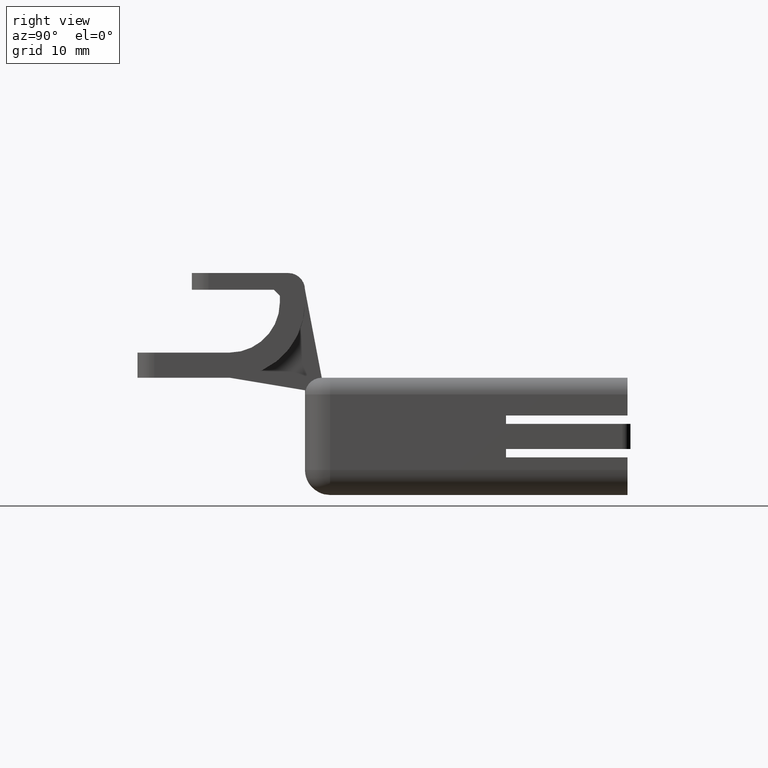
[diagram: clean part render]
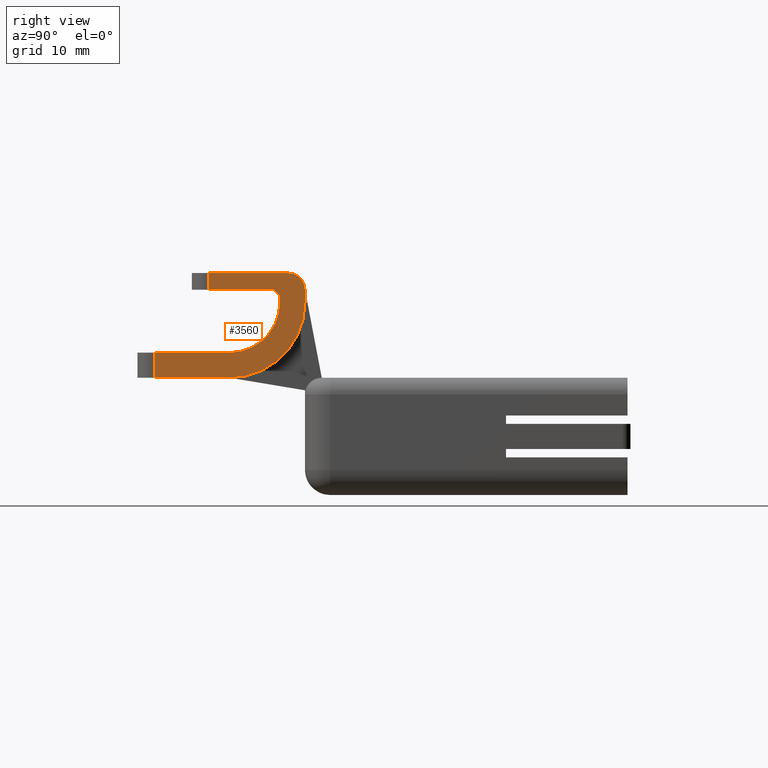
[diagram: same view with one face highlighted and labeled with its STEP entity id]
A machine part, right view. The second image highlights one B-rep face of the part: STEP entity #3560.
In plain terms, the highlighted planar face has unit normal (-1, -0, 0).
Its self-contained STEP definition (entity closure, byte-faithful):
#653=CIRCLE('',#3765,0.9);
#678=CIRCLE('',#3828,0.2);
#679=CIRCLE('',#3834,0.6);
#890=VERTEX_POINT('',#5427);
#891=VERTEX_POINT('',#5429);
#913=VERTEX_POINT('',#5483);
#914=VERTEX_POINT('',#5485);
#919=VERTEX_POINT('',#5512);
#922=VERTEX_POINT('',#5517);
#925=VERTEX_POINT('',#5527);
#948=VERTEX_POINT('',#5568);
#959=VERTEX_POINT('',#5605);
#960=VERTEX_POINT('',#5607);
#1023=VERTEX_POINT('',#5869);
#1026=VERTEX_POINT('',#5951);
#1191=VECTOR('',#4252,1.);
#1206=VECTOR('',#4300,1.);
#1220=VECTOR('',#4334,1.);
#1224=VECTOR('',#4340,1.);
#1234=VECTOR('',#4366,1.);
#1235=VECTOR('',#4369,1.);
#1248=VECTOR('',#4398,1.);
#1316=VECTOR('',#4561,1.);
#1319=VECTOR('',#4579,1.);
#1484=LINE('',#5428,#1191);
#1499=LINE('',#5484,#1206);
#1513=LINE('',#5518,#1220);
#1517=LINE('',#5526,#1224);
#1527=LINE('',#5569,#1234);
#1528=LINE('',#5571,#1235);
#1541=LINE('',#5606,#1248);
#1609=LINE('',#5868,#1316);
#1612=LINE('',#5954,#1319);
#1856=EDGE_CURVE('',#890,#891,#1484,.T.);
#1885=EDGE_CURVE('',#913,#914,#1499,.T.);
#1904=EDGE_CURVE('',#922,#919,#1513,.T.);
#1908=EDGE_CURVE('',#919,#925,#1517,.T.);
#1937=EDGE_CURVE('',#948,#922,#1527,.T.);
#1938=EDGE_CURVE('',#891,#913,#1528,.T.);
#1956=EDGE_CURVE('',#959,#960,#1541,.T.);
#1961=EDGE_CURVE('',#960,#948,#653,.T.);
#2071=EDGE_CURVE('',#1023,#890,#1609,.T.);
#2073=EDGE_CURVE('',#914,#959,#678,.T.);
#2076=EDGE_CURVE('',#1026,#925,#679,.T.);
#2078=EDGE_CURVE('',#1026,#1023,#1612,.T.);
#2999=ORIENTED_EDGE('',*,*,#1904,.F.);
#3000=ORIENTED_EDGE('',*,*,#1937,.F.);
#3001=ORIENTED_EDGE('',*,*,#1961,.F.);
#3002=ORIENTED_EDGE('',*,*,#1956,.F.);
#3003=ORIENTED_EDGE('',*,*,#2073,.F.);
#3004=ORIENTED_EDGE('',*,*,#1885,.F.);
#3005=ORIENTED_EDGE('',*,*,#1938,.F.);
#3006=ORIENTED_EDGE('',*,*,#1856,.F.);
#3007=ORIENTED_EDGE('',*,*,#2071,.F.);
#3008=ORIENTED_EDGE('',*,*,#2078,.F.);
#3009=ORIENTED_EDGE('',*,*,#2076,.T.);
#3010=ORIENTED_EDGE('',*,*,#1908,.F.);
#3196=EDGE_LOOP('',(#2999,#3000,#3001,#3002,#3003,#3004,#3005,#3006,#3007,
#3008,#3009,#3010));
#3382=FACE_BOUND('',#3196,.T.);
#3560=ADVANCED_FACE('',(#3382),#6058,.F.);
#3765=AXIS2_PLACEMENT_3D('',#5613,#4403,#4404);
#3828=AXIS2_PLACEMENT_3D('',#5872,#4565,#4566);
#3834=AXIS2_PLACEMENT_3D('',#5950,#4575,#4576);
#3836=AXIS2_PLACEMENT_3D('',#5955,#4580,$);
#4252=DIRECTION('',(0.,-1.,0.));
#4300=DIRECTION('',(0.,1.,0.));
#4334=DIRECTION('',(1.,0.,0.));
#4340=DIRECTION('',(0.,1.,0.));
#4366=DIRECTION('',(0.,-1.,0.));
#4369=DIRECTION('',(1.,0.,0.));
#4398=DIRECTION('',(-1.,0.,0.));
#4403=DIRECTION('',(0.,0.,1.));
#4404=DIRECTION('',(0.9,0.,0.));
#4561=DIRECTION('',(0.707106781186548,-0.707106781186548,0.));
#4565=DIRECTION('',(0.,0.,1.));
#4566=DIRECTION('',(0.14142135623731,0.14142135623731,0.));
#4575=DIRECTION('',(0.,0.,1.));
#4576=DIRECTION('',(0.6,0.,0.));
#4579=DIRECTION('',(1.,0.,0.));
#4580=DIRECTION('',(0.,0.,1.));
#5427=CARTESIAN_POINT('',(0.375,0.305,0.));
#5428=CARTESIAN_POINT('',(0.375,0.375,0.));
#5429=CARTESIAN_POINT('',(0.375,-0.475,0.));
#5483=CARTESIAN_POINT('',(0.575,-0.475,0.));
#5484=CARTESIAN_POINT('',(0.575,-0.675,0.));
#5485=CARTESIAN_POINT('',(0.575,0.475,0.));
#5512=CARTESIAN_POINT('',(-0.375,-1.125,0.));
#5517=CARTESIAN_POINT('',(-0.675,-1.125,0.));
#5518=CARTESIAN_POINT('',(-0.292498166464494,-1.125,0.));
#5526=CARTESIAN_POINT('',(-0.375,-1.325,0.));
#5527=CARTESIAN_POINT('',(-0.375,-0.225,0.));
#5568=CARTESIAN_POINT('',(-0.675,-0.225,0.));
#5569=CARTESIAN_POINT('',(-0.675,-0.225,0.));
#5571=CARTESIAN_POINT('',(0.207501833535506,-0.475,0.));
#5605=CARTESIAN_POINT('',(0.375,0.675,0.));
#5606=CARTESIAN_POINT('',(0.575,0.675,0.));
#5607=CARTESIAN_POINT('',(0.225,0.675,0.));
#5613=CARTESIAN_POINT('',(0.225,-0.225,0.));
#5868=CARTESIAN_POINT('',(0.371746176337277,0.308253823662723,0.));
#5869=CARTESIAN_POINT('',(0.305,0.375,0.));
#5872=CARTESIAN_POINT('',(0.375,0.475,0.));
#5950=CARTESIAN_POINT('',(0.225,-0.225,0.));
#5951=CARTESIAN_POINT('',(0.225,0.375,0.));
#5954=CARTESIAN_POINT('',(0.225,0.375,0.));
#5955=CARTESIAN_POINT('',(-0.0599963329289878,-0.186981038278097,0.));
#6058=PLANE('',#3836);